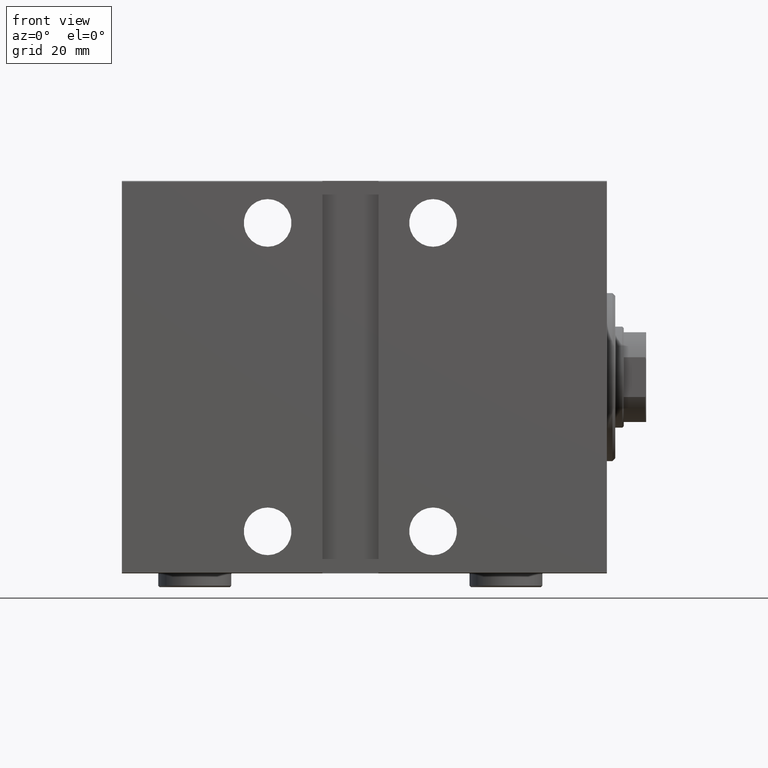
[diagram: clean part render]
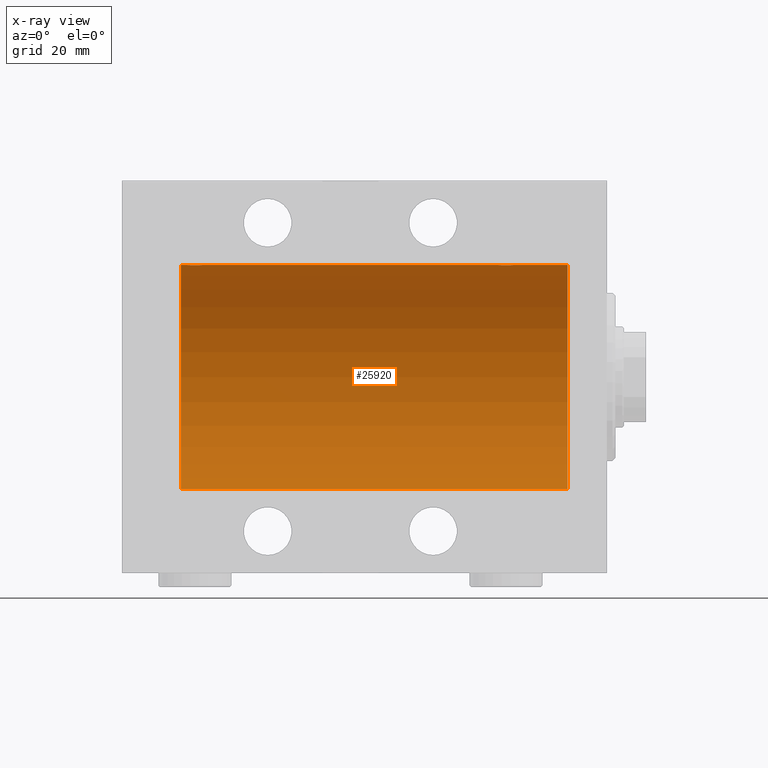
[diagram: x-ray — body ghosted, one internal face saturated and labeled with its STEP entity id]
A machine part, front view, then the same camera in x-ray: the body is ghosted and one INTERNAL B-rep face — a face not visible from any outside direction — is saturated and labeled: STEP entity #25920.
In plain terms, the highlighted cylindrical surface (partial cylindrical patch) has radius 40 mm, axis along (1, 0, -0).
Its self-contained STEP definition (entity closure, byte-faithful):
#697 = VERTEX_POINT ( 'NONE', #17205 ) ;
#1225 = LINE ( 'NONE', #35130, #10597 ) ;
#1584 = VERTEX_POINT ( 'NONE', #18235 ) ;
#1590 = VERTEX_POINT ( 'NONE', #31922 ) ;
#2246 = CARTESIAN_POINT ( 'NONE',  ( 33.15334726986861824, -0.9668189122103377775, 39.98872185468385254 ) ) ;
#2300 = CARTESIAN_POINT ( 'NONE',  ( 144.0000000000000284, -0.1957844162750518868, 39.99999999999999289 ) ) ;
#2701 = CARTESIAN_POINT ( 'NONE',  ( 36.39109692509333627, -2.980812880639895468, 39.88879797994688658 ) ) ;
#2914 = CARTESIAN_POINT ( 'NONE',  ( 35.60477516546423260, -2.980272303779546661, 39.88883864243167920 ) ) ;
#3118 = CYLINDRICAL_SURFACE ( 'NONE', #24097, 40.00000000000000000 ) ;
#3262 = VECTOR ( 'NONE', #42557, 1000.000000000000000 ) ;
#5226 = CARTESIAN_POINT ( 'NONE',  ( 146.0306165810553978, -2.845855236045340408, 39.89870693240650468 ) ) ;
#5325 = CARTESIAN_POINT ( 'NONE',  ( 152.0000000000000000, 4.898587196589413026E-15, -40.00000000000000000 ) ) ;
#5497 = CARTESIAN_POINT ( 'NONE',  ( 152.0000000000000000, 0.000000000000000000, 40.00000000000000000 ) ) ;
#5590 = CARTESIAN_POINT ( 'NONE',  ( 150.0000000000000284, 2.131082946097784527E-15, 40.00000000000000000 ) ) ;
#5679 = CARTESIAN_POINT ( 'NONE',  ( 145.6677573113414326, -2.695129988695737389, 39.90917164320281074 ) ) ;
#5843 = CARTESIAN_POINT ( 'NONE',  ( 36.96489325853513463, -2.847401743820453746, 39.89859630624607689 ) ) ;
#5898 = CARTESIAN_POINT ( 'NONE',  ( 146.6047751654643037, -2.980272303779536891, 39.88883864243170052 ) ) ;
#6060 = CARTESIAN_POINT ( 'NONE',  ( 34.01538552187719944, -2.258217541132902628, 39.93644519243653690 ) ) ;
#6283 = CARTESIAN_POINT ( 'NONE',  ( 34.16955177177597847, -2.384933850258104560, 39.92898715513240404 ) ) ;
#6500 = CARTESIAN_POINT ( 'NONE',  ( 33.73902383005258088, -1.981471132463167084, 39.95113231465138881 ) ) ;
#7385 = CARTESIAN_POINT ( 'NONE',  ( 13.99999999999998401, 0.000000000000000000, 0.000000000000000000 ) ) ;
#7445 = CIRCLE ( 'NONE', #9609, 40.00000000000000000 ) ;
#7520 = DIRECTION ( 'NONE',  ( -1.000000000000000000, -0.000000000000000000, -0.000000000000000000 ) ) ;
#7875 = CARTESIAN_POINT ( 'NONE',  ( 152.0000000000000000, 0.000000000000000000, 0.000000000000000000 ) ) ;
#8369 = CARTESIAN_POINT ( 'NONE',  ( 148.9813627951423030, -2.261082456166700450, 39.93628274425758917 ) ) ;
#8421 = EDGE_CURVE ( 'NONE', #1590, #28276, #21547, .T. ) ;
#8594 = CARTESIAN_POINT ( 'NONE',  ( 148.8269018463240911, -2.387636253591811197, 39.92882473497731866 ) ) ;
#8980 = ORIENTED_EDGE ( 'NONE', *, *, #33019, .T. ) ;
#9180 = ORIENTED_EDGE ( 'NONE', *, *, #13149, .F. ) ;
#9609 = AXIS2_PLACEMENT_3D ( 'NONE', #7875, #35710, #21583 ) ;
#9648 = CARTESIAN_POINT ( 'NONE',  ( 37.98136279514229585, -2.261082456166699561, 39.93628274425758917 ) ) ;
#9717 = VERTEX_POINT ( 'NONE', #19032 ) ;
#10568 = AXIS2_PLACEMENT_3D ( 'NONE', #7385, #34120, #24453 ) ;
#10597 = VECTOR ( 'NONE', #7520, 1000.000000000000000 ) ;
#11963 = CARTESIAN_POINT ( 'NONE',  ( 144.3956640008791794, -1.502129635933996399, 39.97212271185186694 ) ) ;
#12865 = CARTESIAN_POINT ( 'NONE',  ( 148.3285364474629660, -2.696981015661912728, 39.90904630908467965 ) ) ;
#13149 = EDGE_CURVE ( 'NONE', #9717, #28276, #39156, .T. ) ;
#13245 = CARTESIAN_POINT ( 'NONE',  ( 33.61492399084646365, -1.830402106103518278, 39.95843610133494650 ) ) ;
#14270 = ORIENTED_EDGE ( 'NONE', *, *, #26089, .F. ) ;
#15004 = DIRECTION ( 'NONE',  ( -1.000000000000000000, -0.000000000000000000, -0.000000000000000000 ) ) ;
#15473 = VECTOR ( 'NONE', #18744, 1000.000000000000000 ) ;
#15523 = VECTOR ( 'NONE', #15004, 1000.000000000000000 ) ;
#15568 = CARTESIAN_POINT ( 'NONE',  ( 144.0189812288907660, -0.3904143323715943414, 39.99856256910221219 ) ) ;
#15788 = CARTESIAN_POINT ( 'NONE',  ( 149.3825168091147191, -1.833695109615715024, 39.95828327492364451 ) ) ;
#15841 = EDGE_CURVE ( 'NONE', #41074, #1584, #7445, .T. ) ;
#15954 = CARTESIAN_POINT ( 'NONE',  ( 35.03061658105536225, -2.845855236045343073, 39.89870693240651889 ) ) ;
#16006 = CARTESIAN_POINT ( 'NONE',  ( 150.0000000000000568, -0.3964922677423697306, 40.00000000000001421 ) ) ;
#16238 = CARTESIAN_POINT ( 'NONE',  ( 144.0957482634864846, -0.7773146824710983616, 39.99291453282344122 ) ) ;
#16401 = CARTESIAN_POINT ( 'NONE',  ( 37.32853644746298016, -2.696981015661922054, 39.90904630908468675 ) ) ;
#16449 = CARTESIAN_POINT ( 'NONE',  ( 39.00000000000000000, 1.790049141998953147E-15, 40.00000000000000000 ) ) ;
#16612 = CARTESIAN_POINT ( 'NONE',  ( 35.79958713980801832, -2.999840380514740890, 39.88735335562824247 ) ) ;
#17205 = CARTESIAN_POINT ( 'NONE',  ( 13.99999999999998401, 4.898587196589413026E-15, -40.00000000000000000 ) ) ;
#18141 = CARTESIAN_POINT ( 'NONE',  ( 152.0000000000000000, 0.000000000000000000, 40.00000000000000000 ) ) ;
#18235 = CARTESIAN_POINT ( 'NONE',  ( 152.0000000000000000, 0.000000000000000000, 40.00000000000000000 ) ) ;
#18744 = DIRECTION ( 'NONE',  ( -1.000000000000000000, -0.000000000000000000, -0.000000000000000000 ) ) ;
#18924 = CARTESIAN_POINT ( 'NONE',  ( 147.7745567882634532, -2.904869018727211483, 39.89440043036669437 ) ) ;
#19032 = CARTESIAN_POINT ( 'NONE',  ( 144.0000000000000284, -1.482427413091325385E-23, 40.00000000000000000 ) ) ;
#19157 = CARTESIAN_POINT ( 'NONE',  ( 149.6018872812850020, -1.506322235190780567, 39.97196309111976831 ) ) ;
#19323 = CARTESIAN_POINT ( 'NONE',  ( 38.60188728128492386, -1.506322235190776349, 39.97196309111974699 ) ) ;
#19378 = CARTESIAN_POINT ( 'NONE',  ( 149.6953700770844193, -1.331594428131637642, 39.97823692017209396 ) ) ;
#19593 = CARTESIAN_POINT ( 'NONE',  ( 149.2582967032050760, -1.984537326394301138, 39.95097977400578770 ) ) ;
#19986 = CARTESIAN_POINT ( 'NONE',  ( 38.38251680911464092, -1.833695109615710361, 39.95828327492363741 ) ) ;
#21511 = EDGE_CURVE ( 'NONE', #41074, #697, #29788, .T. ) ;
#21547 = B_SPLINE_CURVE_WITH_KNOTS ( 'NONE', 3,
 ( #29633, #33451, #40826, #43308, #2246, #33666, #26710, #13245, #6500, #6060, #6283, #39954, #36595, #15954, #26495, #2914, #16612, #23125, #2701, #36808, #5843, #16401, #37463, #30083, #9648, #37030, #19986, #19323, #33003, #30293, #43957, #26931 ),
 .UNSPECIFIED., .F., .F.,
 ( 4, 2, 2, 2, 2, 2, 2, 2, 2, 2, 2, 2, 2, 2, 2, 4 ),
 ( 0.009382660366305115712, 0.009968941372944153251, 0.01055522237958318905, 0.01114150338622222659, 0.01172778439286126240, 0.01231406539950029994, 0.01290034640613933747, 0.01348662741277837501, 0.01407290841941741255, 0.01465918942605645009, 0.01524547043269548589, 0.01583175143933452170, 0.01641803244597355924, 0.01700431345261259677, 0.01759059445925163084, 0.01876315647252970592 ),
 .UNSPECIFIED. ) ;
#21583 = DIRECTION ( 'NONE',  ( 0.000000000000000000, 0.000000000000000000, 1.000000000000000000 ) ) ;
#21961 = LINE ( 'NONE', #18141, #15523 ) ;
#22068 = CARTESIAN_POINT ( 'NONE',  ( 147.1956053107308549, -3.000157693440628659, 39.88732948994959315 ) ) ;
#22965 = CARTESIAN_POINT ( 'NONE',  ( 149.9202617499164774, -0.7903958539027342578, 39.99381900068937057 ) ) ;
#23125 = CARTESIAN_POINT ( 'NONE',  ( 36.19560531073086196, -3.000157693440633988, 39.88732948994960026 ) ) ;
#23153 = VERTEX_POINT ( 'NONE', #24028 ) ;
#23346 = DIRECTION ( 'NONE',  ( -1.000000000000000000, -0.000000000000000000, -0.000000000000000000 ) ) ;
#24028 = CARTESIAN_POINT ( 'NONE',  ( 13.99999999999998401, 0.000000000000000000, 40.00000000000000000 ) ) ;
#24097 = AXIS2_PLACEMENT_3D ( 'NONE', #44174, #23346, #37024 ) ;
#24453 = DIRECTION ( 'NONE',  ( 0.000000000000000000, 0.000000000000000000, 1.000000000000000000 ) ) ;
#25653 = CARTESIAN_POINT ( 'NONE',  ( 144.7390238300526732, -1.981471132463180407, 39.95113231465140302 ) ) ;
#25875 = CARTESIAN_POINT ( 'NONE',  ( 145.4955691708653092, -2.602909538701748016, 39.91537030566259858 ) ) ;
#25920 = ADVANCED_FACE ( 'NONE', ( #30945 ), #3118, .F. ) ;
#26089 = EDGE_CURVE ( 'NONE', #1590, #23153, #21961, .T. ) ;
#26333 = CARTESIAN_POINT ( 'NONE',  ( 145.1695517717760708, -2.384933850258101895, 39.92898715513241115 ) ) ;
#26495 = CARTESIAN_POINT ( 'NONE',  ( 35.22130476584258219, -2.903766417398234267, 39.89448096967571189 ) ) ;
#26553 = CARTESIAN_POINT ( 'NONE',  ( 144.3027865941911898, -1.327859336864141371, 39.97836169682016561 ) ) ;
#26710 = CARTESIAN_POINT ( 'NONE',  ( 33.39566400087917231, -1.502129635934005503, 39.97212271185186694 ) ) ;
#26931 = CARTESIAN_POINT ( 'NONE',  ( 39.00000000000000000, 1.790049141998953147E-15, 40.00000000000000000 ) ) ;
#28276 = VERTEX_POINT ( 'NONE', #16449 ) ;
#28664 = B_SPLINE_CURVE_WITH_KNOTS ( 'NONE', 3,
 ( #32840, #2300, #15568, #16238, #29015, #26553, #11963, #35975, #25653, #36427, #26333, #25875, #5679, #5226, #42692, #5898, #29240, #22068, #39332, #18924, #39553, #12865, #29684, #8594, #8369, #19593, #15788, #19157, #19378, #22965, #16006, #32616 ),
 .UNSPECIFIED., .F., .F.,
 ( 4, 2, 2, 2, 2, 2, 2, 2, 2, 2, 2, 2, 2, 2, 2, 4 ),
 ( 0.009382660366305108773, 0.009968941372944142842, 0.01055522237958317691, 0.01114150338622221272, 0.01172778439286124678, 0.01231406539950028085, 0.01290034640613931492, 0.01348662741277835073, 0.01407290841941738480, 0.01465918942605641886, 0.01524547043269545293, 0.01583175143933448700, 0.01641803244597352107, 0.01700431345261255861, 0.01759059445925158921, 0.01876315647252969204 ),
 .UNSPECIFIED. ) ;
#29015 = CARTESIAN_POINT ( 'NONE',  ( 144.1533472698686182, -0.9668189122103303390, 39.98872185468384544 ) ) ;
#29116 = ORIENTED_EDGE ( 'NONE', *, *, #21511, .T. ) ;
#29240 = CARTESIAN_POINT ( 'NONE',  ( 146.7995871398080112, -2.999840380514732896, 39.88735335562824957 ) ) ;
#29633 = CARTESIAN_POINT ( 'NONE',  ( 32.99999999999999289, -1.483413489222851649E-23, 40.00000000000000000 ) ) ;
#29684 = CARTESIAN_POINT ( 'NONE',  ( 148.5008846840403862, -2.604941918888304286, 39.91523680494982784 ) ) ;
#29788 = LINE ( 'NONE', #5325, #3262 ) ;
#30083 = CARTESIAN_POINT ( 'NONE',  ( 37.82690184632410535, -2.387636253591812530, 39.92882473497732576 ) ) ;
#30093 = EDGE_CURVE ( 'NONE', #697, #23153, #37098, .T. ) ;
#30293 = CARTESIAN_POINT ( 'NONE',  ( 38.92026174991647736, -0.7903958539027343688, 39.99381900068937767 ) ) ;
#30945 = FACE_OUTER_BOUND ( 'NONE', #42945, .T. ) ;
#31465 = ORIENTED_EDGE ( 'NONE', *, *, #15841, .F. ) ;
#31795 = EDGE_CURVE ( 'NONE', #1584, #33957, #1225, .T. ) ;
#31922 = CARTESIAN_POINT ( 'NONE',  ( 32.99999999999999289, -1.483413489222851649E-23, 40.00000000000000000 ) ) ;
#32616 = CARTESIAN_POINT ( 'NONE',  ( 150.0000000000000284, 2.131082946097784527E-15, 40.00000000000000000 ) ) ;
#32840 = CARTESIAN_POINT ( 'NONE',  ( 144.0000000000000284, -1.482427413091325385E-23, 40.00000000000000000 ) ) ;
#33003 = CARTESIAN_POINT ( 'NONE',  ( 38.69537007708436249, -1.331594428131636754, 39.97823692017208685 ) ) ;
#33019 = EDGE_CURVE ( 'NONE', #9717, #33957, #28664, .T. ) ;
#33451 = CARTESIAN_POINT ( 'NONE',  ( 32.99999999999998579, -0.1957844162750551620, 40.00000000000000000 ) ) ;
#33666 = CARTESIAN_POINT ( 'NONE',  ( 33.30278659419118270, -1.327859336864148254, 39.97836169682017982 ) ) ;
#33957 = VERTEX_POINT ( 'NONE', #5590 ) ;
#34120 = DIRECTION ( 'NONE',  ( -1.000000000000000000, 0.000000000000000000, 0.000000000000000000 ) ) ;
#35130 = CARTESIAN_POINT ( 'NONE',  ( 152.0000000000000000, 0.000000000000000000, 40.00000000000000000 ) ) ;
#35710 = DIRECTION ( 'NONE',  ( -1.000000000000000000, 0.000000000000000000, 0.000000000000000000 ) ) ;
#35887 = ORIENTED_EDGE ( 'NONE', *, *, #8421, .T. ) ;
#35975 = CARTESIAN_POINT ( 'NONE',  ( 144.6149239908464779, -1.830402106103509174, 39.95843610133493939 ) ) ;
#36427 = CARTESIAN_POINT ( 'NONE',  ( 145.0153855218772208, -2.258217541132913730, 39.93644519243654400 ) ) ;
#36595 = CARTESIAN_POINT ( 'NONE',  ( 34.66775731134134730, -2.695129988695738721, 39.90917164320281074 ) ) ;
#36808 = CARTESIAN_POINT ( 'NONE',  ( 36.77455678826340346, -2.904869018727219476, 39.89440043036668726 ) ) ;
#37024 = DIRECTION ( 'NONE',  ( 0.000000000000000000, 0.000000000000000000, 1.000000000000000000 ) ) ;
#37030 = CARTESIAN_POINT ( 'NONE',  ( 38.25829670320502629, -1.984537326394299805, 39.95097977400577349 ) ) ;
#37098 = CIRCLE ( 'NONE', #10568, 40.00000000000000000 ) ;
#37207 = ORIENTED_EDGE ( 'NONE', *, *, #31795, .F. ) ;
#37463 = CARTESIAN_POINT ( 'NONE',  ( 37.50088468404035069, -2.604941918888307395, 39.91523680494982784 ) ) ;
#39156 = LINE ( 'NONE', #5497, #15473 ) ;
#39332 = CARTESIAN_POINT ( 'NONE',  ( 147.3910969250933363, -2.980812880639886586, 39.88879797994687948 ) ) ;
#39553 = CARTESIAN_POINT ( 'NONE',  ( 147.9648932585351986, -2.847401743820445752, 39.89859630624609110 ) ) ;
#39954 = CARTESIAN_POINT ( 'NONE',  ( 34.49556917086533048, -2.602909538701751568, 39.91537030566259148 ) ) ;
#40826 = CARTESIAN_POINT ( 'NONE',  ( 33.01898122889073051, -0.3904143323715981717, 39.99856256910221219 ) ) ;
#41074 = VERTEX_POINT ( 'NONE', #44315 ) ;
#42269 = ORIENTED_EDGE ( 'NONE', *, *, #30093, .T. ) ;
#42557 = DIRECTION ( 'NONE',  ( -1.000000000000000000, -0.000000000000000000, -0.000000000000000000 ) ) ;
#42692 = CARTESIAN_POINT ( 'NONE',  ( 146.2213047658425751, -2.903766417398223609, 39.89448096967572610 ) ) ;
#42945 = EDGE_LOOP ( 'NONE', ( #31465, #29116, #42269, #14270, #35887, #9180, #8980, #37207 ) ) ;
#43308 = CARTESIAN_POINT ( 'NONE',  ( 33.09574826348646326, -0.7773146824711036906, 39.99291453282343412 ) ) ;
#43957 = CARTESIAN_POINT ( 'NONE',  ( 38.99999999999999289, -0.3964922677423693975, 39.99999999999998579 ) ) ;
#44174 = CARTESIAN_POINT ( 'NONE',  ( 152.0000000000000000, 0.000000000000000000, 0.000000000000000000 ) ) ;
#44315 = CARTESIAN_POINT ( 'NONE',  ( 152.0000000000000000, 4.898587196589413026E-15, -40.00000000000000000 ) ) ;